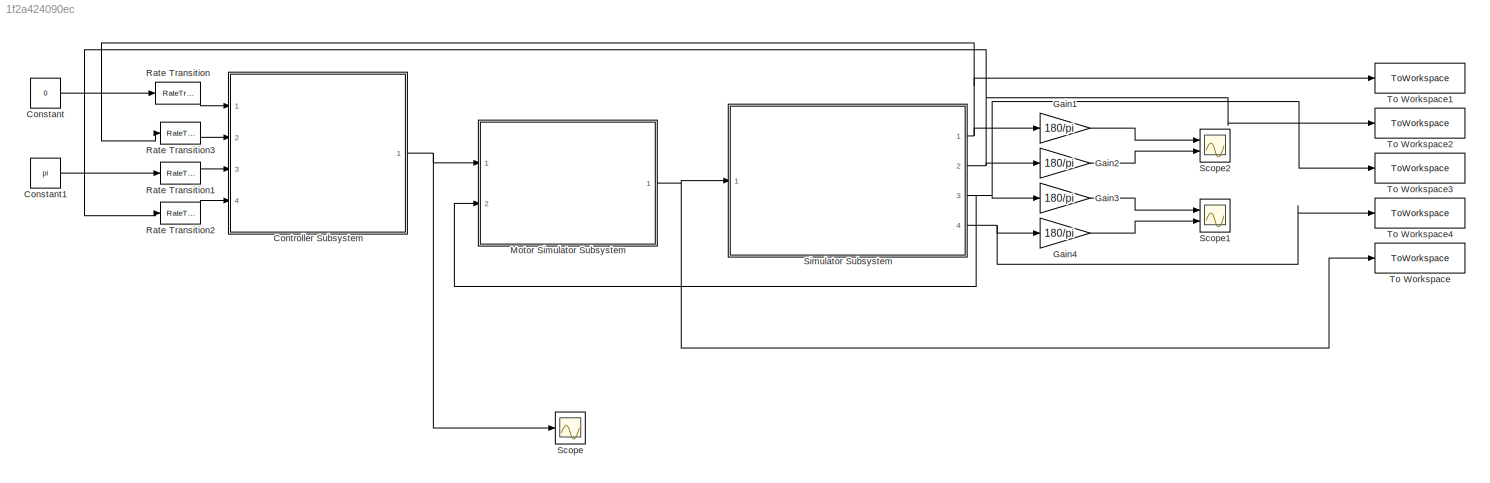
MODEL slx_1f2a424090ec
KIND model
CONFIG AbsTol = auto
CONFIG EnableMultiTasking = off
CONFIG FixedStep = dt
CONFIG MaxStep = auto
CONFIG MinStep = auto
CONFIG RelTol = 1e-3
CONFIG SampleTimeConstraint = Unconstrained
CONFIG Solver = FixedStepAuto
CONFIG SolverName = FixedStepAuto
CONFIG StartTime = 0.0
CONFIG StopTime = T_sim
BLOCK [Constant] Constant
  Value = 0
BLOCK [Constant] Constant1
  Value = pi
BLOCK [SubSystem] Controller Subsystem
  Ports = [4, 1]
  ReferencedSubsystem = s0307_theta_controller_PD
  RequestExecContextInheritance = off
  cp_ratio = 0
  cz_ratio = 0
  wc = 0
BLOCK [Gain] Gain1
  Gain = 180/pi
BLOCK [Gain] Gain2
  Gain = 180/pi
BLOCK [Gain] Gain3
  Gain = 180/pi
BLOCK [Gain] Gain4
  Gain = 180/pi
BLOCK [SubSystem] Motor Simulator Subsystem
  Ports = [2, 1]
  ReferencedSubsystem = s0303_motor_simulator
  RequestExecContextInheritance = off
  i_0 = 0
  omega_0 = 0
BLOCK [RateTransition] Rate Transition
  OutPortSampleTime = dt_control
BLOCK [RateTransition] Rate Transition1
  OutPortSampleTime = dt_control
BLOCK [RateTransition] Rate Transition2
  OutPortSampleTime = dt_control
BLOCK [RateTransition] Rate Transition3
  OutPortSampleTime = dt_control
BLOCK [Scope] Scope
  Floating = off
  NumInputPorts = 1
  Ports = [1]
  ScopeSpecificationString = Simulink.scopes.TimeScopeBlockCfg('CurrentConfiguration', extmgr.ConfigurationSet(extmgr.Configuration('Core','General UI',true),extmgr.Configuration('Core','Source UI',true),extmgr.Configuration('Sources','WiredSimulink',true,'DataLoggingVariableName','ScopeData1'),extmgr.Configuration('Visuals','Time Domain',true,'SerializedDisplays',{struct('MinYLimReal','-106.71652','MaxYLimReal','74.04616','Y...<+1435ch>
BLOCK [Scope] Scope1
  Floating = off
  NumInputPorts = 2
  Ports = [2]
  ScopeSpecificationString = Simulink.scopes.TimeScopeBlockCfg('CurrentConfiguration', extmgr.ConfigurationSet(extmgr.Configuration('Core','General UI',true),extmgr.Configuration('Core','Source UI',true),extmgr.Configuration('Sources','WiredSimulink',true,'DataLoggingVariableName','ScopeData1'),extmgr.Configuration('Visuals','Time Domain',true,'SerializedDisplays',{struct('MinYLimReal','-217.35105','MaxYLimReal','57.41144','Y...<+2059ch>
BLOCK [Scope] Scope2
  Floating = off
  NumInputPorts = 2
  Ports = [2]
  ScopeSpecificationString = Simulink.scopes.TimeScopeBlockCfg('CurrentConfiguration', extmgr.ConfigurationSet(extmgr.Configuration('Core','General UI',true),extmgr.Configuration('Core','Source UI',true),extmgr.Configuration('Sources','WiredSimulink',true,'DataLoggingVariableName','ScopeData2'),extmgr.Configuration('Visuals','Time Domain',true,'SerializedDisplays',{struct('MinYLimReal','-0.0000000000000013','MaxYLimReal','0.0...<+2375ch>
BLOCK [SubSystem] Simulator Subsystem
  Ports = [1, 4]
  ReferencedSubsystem = s0310_simulator
  RequestExecContextInheritance = off
  al_0 = PARAMS.al_0
  al_dot_0 = PARAMS.al_dot_0
  th_0 = PARAMS.th_0
  th_dot_0 = PARAMS.th_dot_0
BLOCK [ToWorkspace] To Workspace
  FixptAsFi = on
  MaxDataPoints = inf
  Ports = [1]
  SampleTime = -1
  VariableName = tau
BLOCK [ToWorkspace] To Workspace1
  FixptAsFi = on
  MaxDataPoints = inf
  Ports = [1]
  SampleTime = -1
  VariableName = theta
BLOCK [ToWorkspace] To Workspace2
  FixptAsFi = on
  MaxDataPoints = inf
  Ports = [1]
  SampleTime = -1
  VariableName = alpha
BLOCK [ToWorkspace] To Workspace3
  FixptAsFi = on
  MaxDataPoints = inf
  Ports = [1]
  SampleTime = -1
  VariableName = theta_dot
BLOCK [ToWorkspace] To Workspace4
  FixptAsFi = on
  MaxDataPoints = inf
  Ports = [1]
  SampleTime = -1
  VariableName = alpha_dot
LINE Constant1:1 -> Rate Transition1:1
LINE Constant:1 -> Rate Transition:1
NET Controller Subsystem:1 -> Motor Simulator Subsystem:1, Scope:1
LINE Gain1:1 -> Scope2:1
LINE Gain2:1 -> Scope2:2
LINE Gain3:1 -> Scope1:1
LINE Gain4:1 -> Scope1:2
NET Motor Simulator Subsystem:1 -> Simulator Subsystem:1, To Workspace:1
LINE Rate Transition1:1 -> Controller Subsystem:3
LINE Rate Transition2:1 -> Controller Subsystem:4
LINE Rate Transition3:1 -> Controller Subsystem:2
LINE Rate Transition:1 -> Controller Subsystem:1
NET Simulator Subsystem:1 -> Gain1:1, Rate Transition3:1, To Workspace1:1
NET Simulator Subsystem:2 -> Gain2:1, Rate Transition2:1, To Workspace2:1
NET Simulator Subsystem:3 -> Gain3:1, Motor Simulator Subsystem:2, To Workspace3:1
NET Simulator Subsystem:4 -> Gain4:1, To Workspace4:1
note: NET lines group one-source signal fan-out (src -> all destinations, sorted); 1:1 wires keep LINE
